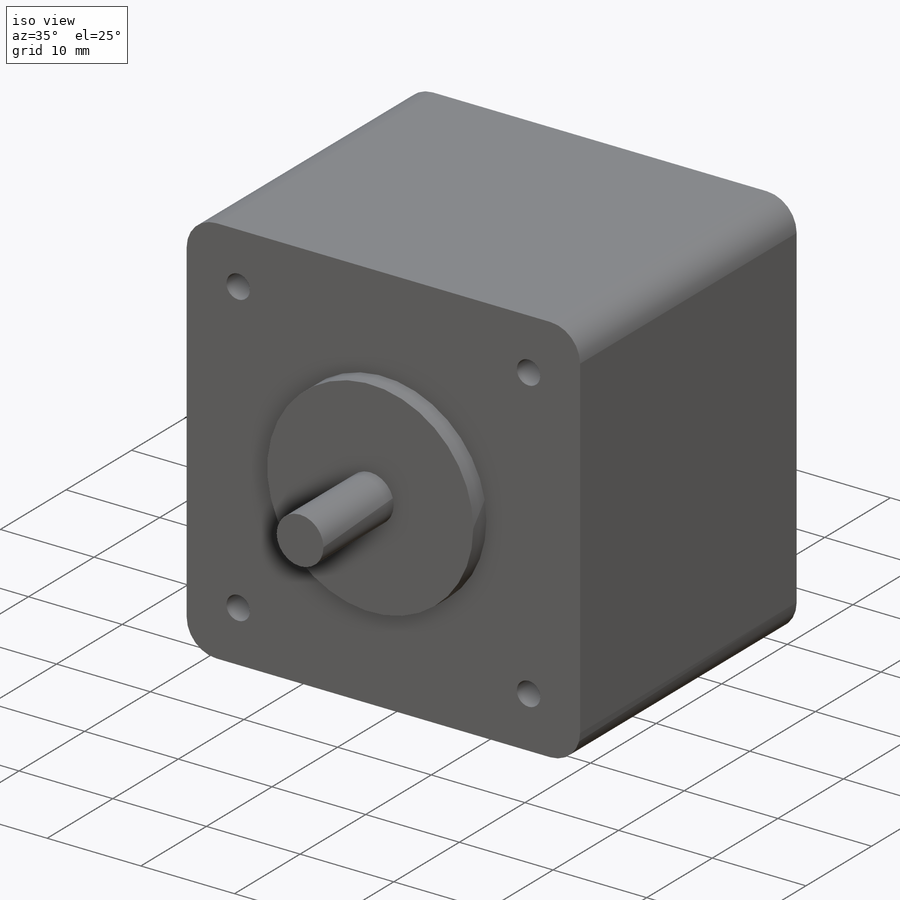
[diagram: iso view]
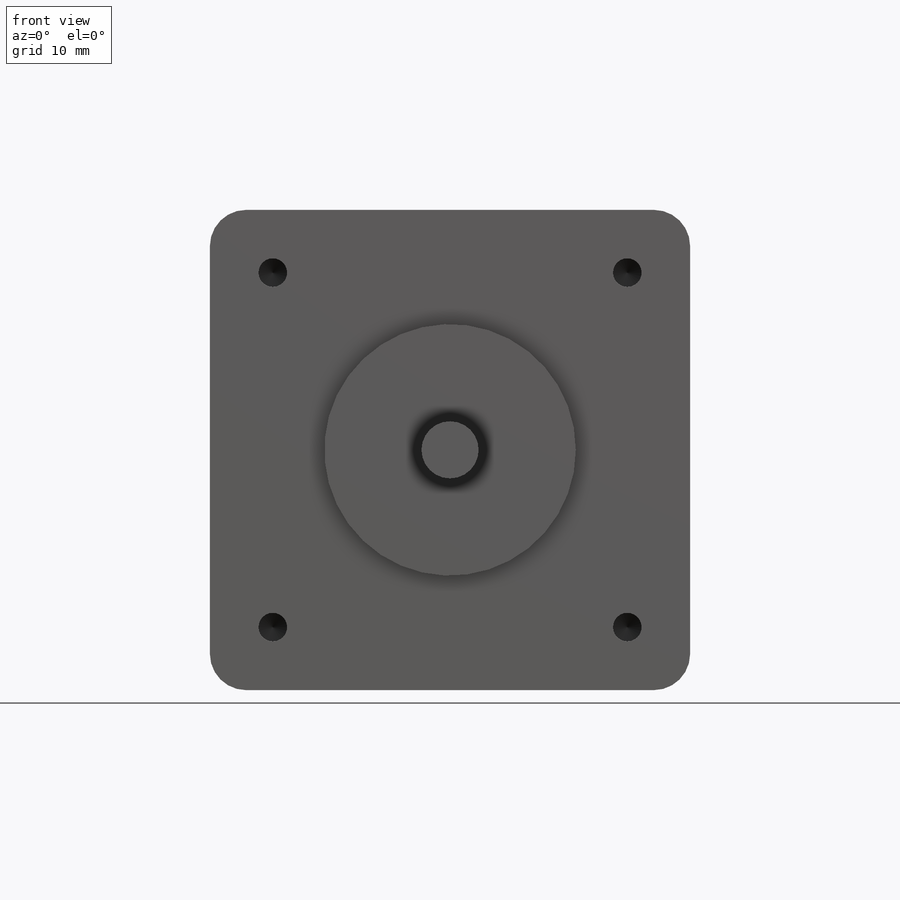
[diagram: front view]
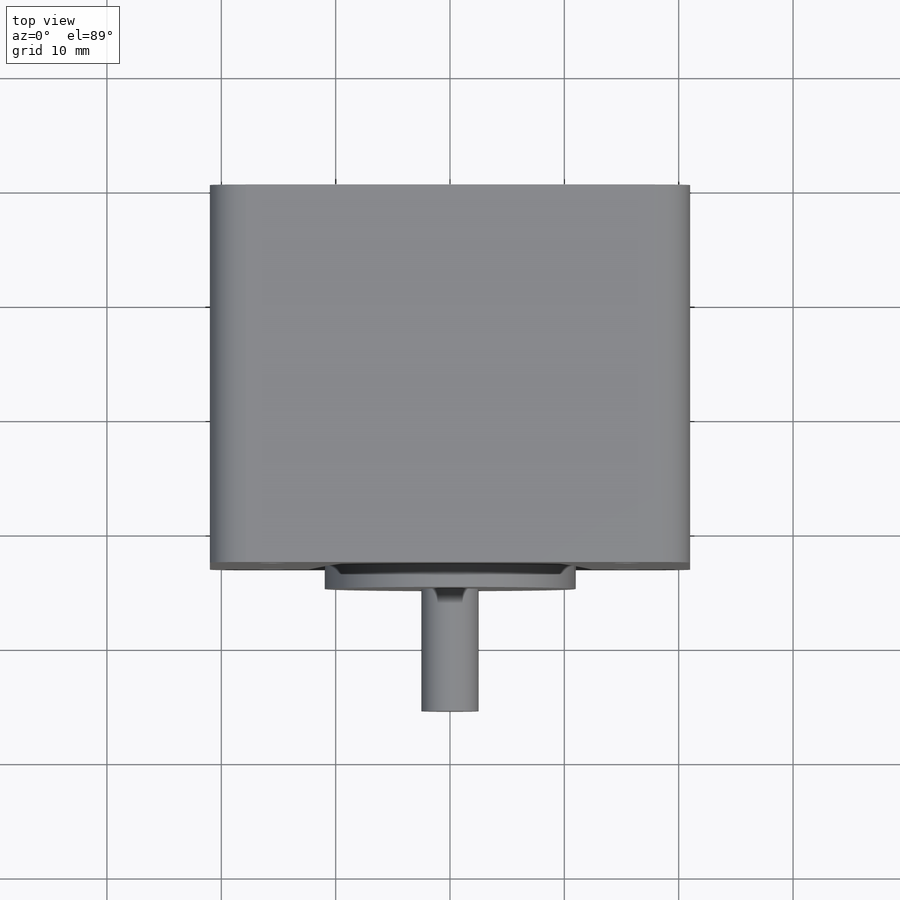
[diagram: top view]
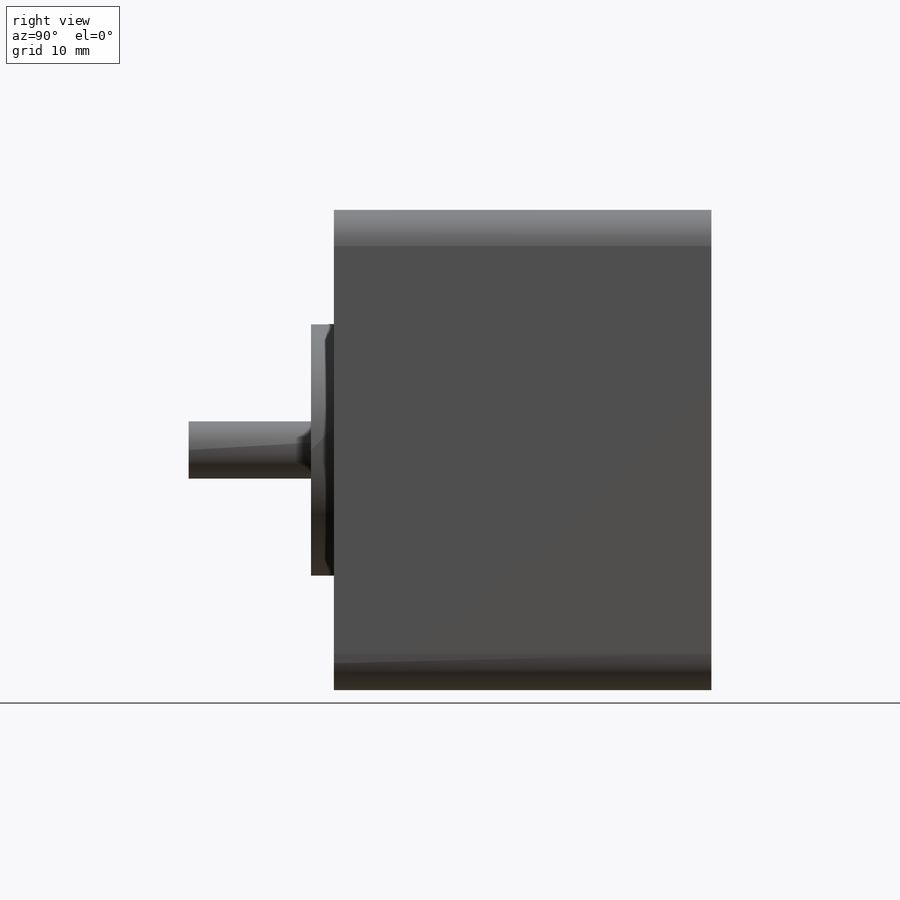
[diagram: right view]
SOLIDWORKS PART (.sldprt)
format: sldprt  version: not decoded by parser v0  size: 220,160 bytes
history: native  units: mm
features: sketch x4, plane x2, material x1, extrude x1, revolve x1, hole x1, fillet x1 (+11 scaffold rows collapsed)
feature tree (22):
  scaffold x11  (default folders/planes/origin — collapsed)
  material  "Material <not specified>"
  plane  "Plane1"  Offset=33.02mm
  sketch  "Sketch1"  dims[D1=42.0mm D2=42.0mm D3=21.0mm D4=21.0mm]
  extrude  "Boss-Extrude1"  Depth=33.02mm
  plane  "Plane2"
  sketch  "Sketch6"  dims[c1.D1=15.24mm c1.D2=2.0066mm c1.D3=10.9982mm c2.D2=2.0mm c2.D1=12.7mm c2.D4=33.02mm c2.D5=21.0mm c2.D6=2.5mm]
  revolve  "Revolve5"  Angle=360deg
  hole  "M3x0.5 Tapped Hole1"  Diameter=2.5mm Depth=7.5mm
  sketch  "Sketch8"  dims[c1.D1=15.5mm c1.D2=15.5mm c1.D3=15.5mm c2.D2=15.5mm]
  sketch  "Sketch7"  dims[hole-wizard template sketch: 50 standard entries collapsed; hole parameters above]
  fillet  "Fillet1"  Radius=3.175mm
decode coverage: 8 of 8 modeling features carry decoded parameters
note: ~ marks probable driven/reference dimensions
note: suppression state not decoded; provenance and decode notes live in map.json
